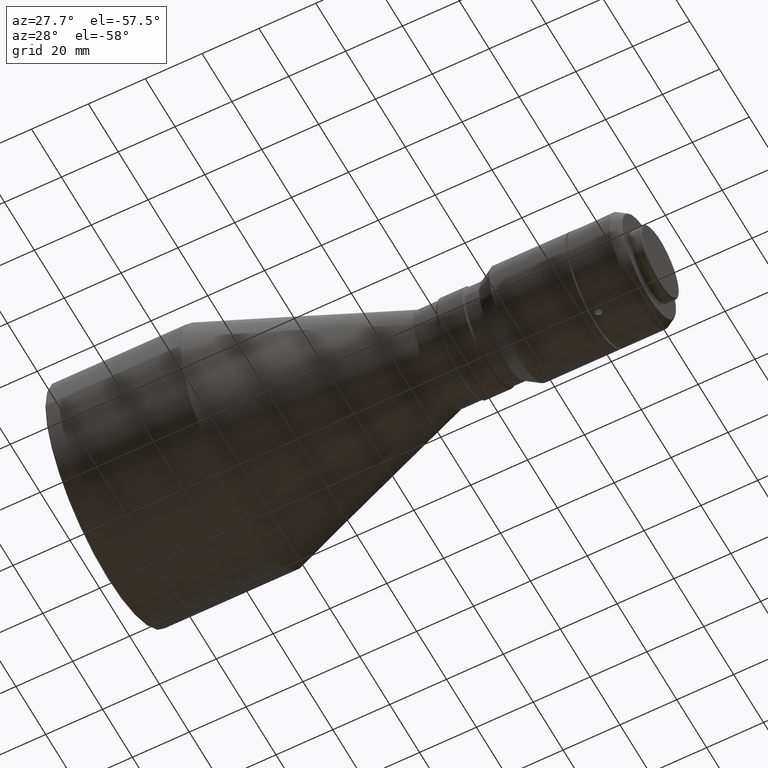
[diagram: clean part render]
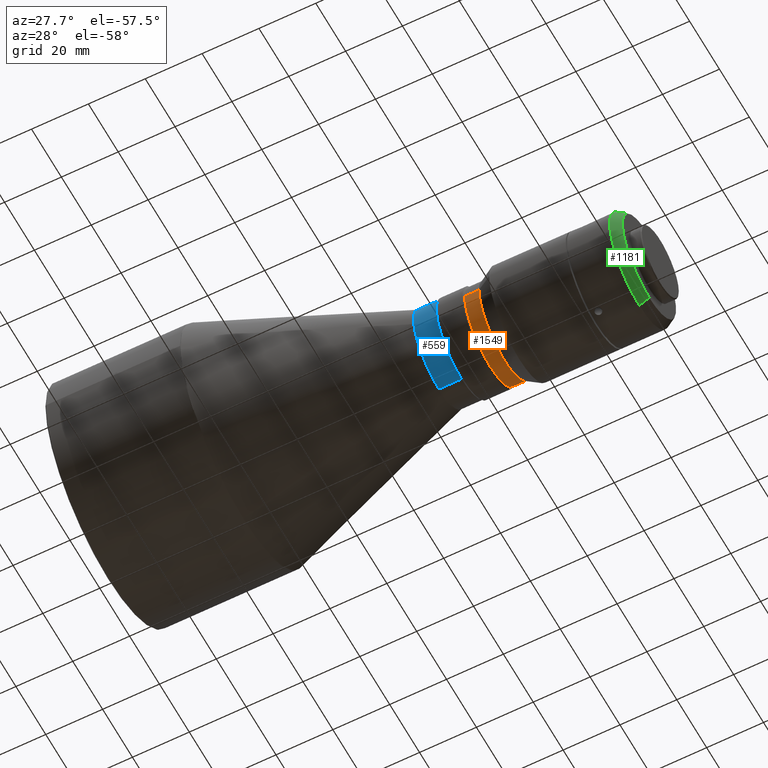
[diagram: same view with three faces highlighted in distinct colors, each labeled with its STEP entity id]
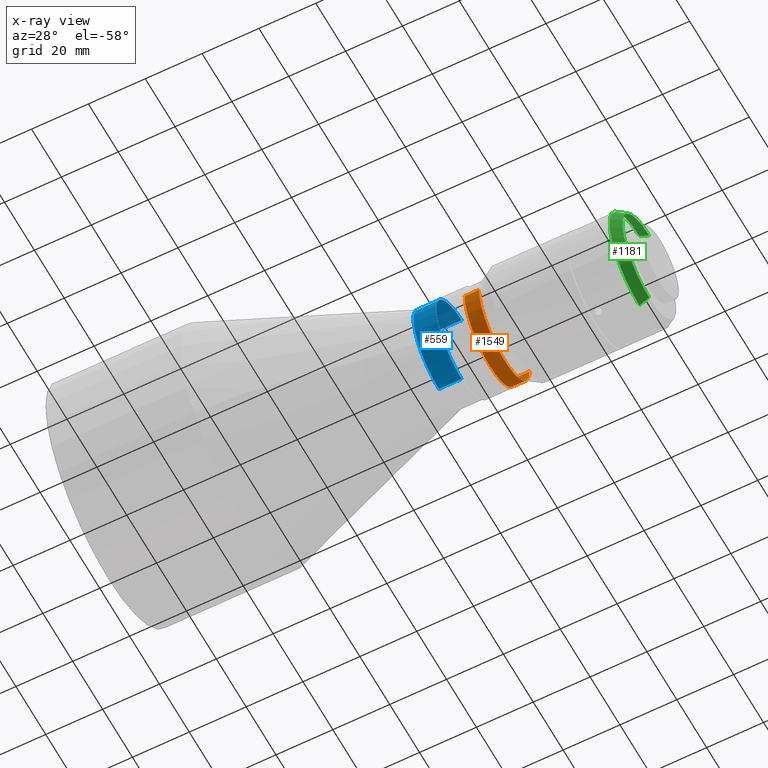
[diagram: x-ray of the same camera — body ghosted, the three highlighted faces saturated]
A machine part, auxiliary view with three faces highlighted in distinct colors.
The next image is the same camera in x-ray (body ghosted, the three faces saturated) — at least one of them is partly hidden behind the body in this view.
Their STEP definitions:

[orange] entity #1549 — the highlighted cylindrical surface (partial cylindrical patch) has radius 17 mm, axis along (-1, -0, -0).
#22 = ORIENTED_EDGE ( 'NONE', *, *, #640, .F. ) ;
#36 = VECTOR ( 'NONE', #910, 1000.000000000000000 ) ;
#87 = VERTEX_POINT ( 'NONE', #1551 ) ;
#96 = DIRECTION ( 'NONE',  ( -1.000000000000000000, -2.040851148208008200E-016, -0.0000000000000000000 ) ) ;
#106 = ORIENTED_EDGE ( 'NONE', *, *, #678, .F. ) ;
#110 = AXIS2_PLACEMENT_3D ( 'NONE', #377, #623, #165 ) ;
#150 = CARTESIAN_POINT ( 'NONE',  ( 37.29999999999999700, 2.112515728529184100E-015, -17.00000000000000000 ) ) ;
#165 = DIRECTION ( 'NONE',  ( -4.081702296416016500E-016, 0.0000000000000000000, -1.000000000000000000 ) ) ;
#267 = EDGE_CURVE ( 'NONE', #338, #87, #1286, .T. ) ;
#271 = CARTESIAN_POINT ( 'NONE',  ( 37.29999999999999700, 0.0000000000000000000, 0.0000000000000000000 ) ) ;
#275 = DIRECTION ( 'NONE',  ( -1.000000000000000000, 0.0000000000000000000, 0.0000000000000000000 ) ) ;
#293 = CARTESIAN_POINT ( 'NONE',  ( 42.29999999999999700, 0.0000000000000000000, 0.0000000000000000000 ) ) ;
#302 = ORIENTED_EDGE ( 'NONE', *, *, #267, .F. ) ;
#311 = DIRECTION ( 'NONE',  ( -1.000000000000000000, -2.040851148208008200E-016, -0.0000000000000000000 ) ) ;
#333 = AXIS2_PLACEMENT_3D ( 'NONE', #271, #275, #754 ) ;
#338 = VERTEX_POINT ( 'NONE', #941 ) ;
#377 = CARTESIAN_POINT ( 'NONE',  ( 42.30000000000000400, 0.0000000000000000000, 0.0000000000000000000 ) ) ;
#397 = CARTESIAN_POINT ( 'NONE',  ( 42.30000000000000400, -17.00000000000000000, 0.0000000000000000000 ) ) ;
#623 = DIRECTION ( 'NONE',  ( -1.000000000000000000, -0.0000000000000000000, -0.0000000000000000000 ) ) ;
#640 = EDGE_CURVE ( 'NONE', #694, #1269, #1305, .T. ) ;
#641 = DIRECTION ( 'NONE',  ( -1.000000000000000000, 0.0000000000000000000, 0.0000000000000000000 ) ) ;
#672 = EDGE_CURVE ( 'NONE', #338, #707, #962, .T. ) ;
#678 = EDGE_CURVE ( 'NONE', #87, #694, #861, .T. ) ;
#694 = VERTEX_POINT ( 'NONE', #150 ) ;
#707 = VERTEX_POINT ( 'NONE', #397 ) ;
#750 = CARTESIAN_POINT ( 'NONE',  ( 37.29999999999999700, -17.00000000000000000, 0.0000000000000000000 ) ) ;
#752 = EDGE_CURVE ( 'NONE', #707, #1269, #1317, .T. ) ;
#754 = DIRECTION ( 'NONE',  ( 0.0000000000000000000, 0.0000000000000000000, 1.000000000000000000 ) ) ;
#819 = AXIS2_PLACEMENT_3D ( 'NONE', #293, #311, #931 ) ;
#857 = ORIENTED_EDGE ( 'NONE', *, *, #672, .T. ) ;
#861 = CIRCLE ( 'NONE', #333, 17.00000000000000000 ) ;
#879 = CARTESIAN_POINT ( 'NONE',  ( 37.29999999999999700, 0.0000000000000000000, 0.0000000000000000000 ) ) ;
#883 = DIRECTION ( 'NONE',  ( 0.0000000000000000000, 0.0000000000000000000, 1.000000000000000000 ) ) ;
#910 = DIRECTION ( 'NONE',  ( -1.000000000000000000, -2.040851148208008200E-016, -0.0000000000000000000 ) ) ;
#931 = DIRECTION ( 'NONE',  ( 4.081702296416016500E-016, -1.000000000000000000, 0.0000000000000000000 ) ) ;
#941 = CARTESIAN_POINT ( 'NONE',  ( 42.30000000000000400, 17.00000000000000000, 2.081899558550500300E-015 ) ) ;
#962 = CIRCLE ( 'NONE', #110, 17.00000000000000000 ) ;
#977 = ORIENTED_EDGE ( 'NONE', *, *, #752, .T. ) ;
#1223 = CYLINDRICAL_SURFACE ( 'NONE', #819, 17.00000000000000000 ) ;
#1265 = CARTESIAN_POINT ( 'NONE',  ( 42.30000000000000400, -17.00000000000000000, 0.0000000000000000000 ) ) ;
#1269 = VERTEX_POINT ( 'NONE', #750 ) ;
#1286 = LINE ( 'NONE', #1318, #1422 ) ;
#1305 = CIRCLE ( 'NONE', #1527, 17.00000000000000000 ) ;
#1317 = LINE ( 'NONE', #1265, #36 ) ;
#1318 = CARTESIAN_POINT ( 'NONE',  ( 42.29999999999999000, 17.00000000000000000, 2.081899558550500300E-015 ) ) ;
#1422 = VECTOR ( 'NONE', #96, 1000.000000000000000 ) ;
#1445 = EDGE_LOOP ( 'NONE', ( #302, #857, #977, #22, #106 ) ) ;
#1527 = AXIS2_PLACEMENT_3D ( 'NONE', #879, #641, #883 ) ;
#1541 = FACE_OUTER_BOUND ( 'NONE', #1445, .T. ) ;
#1549 = ADVANCED_FACE ( 'NONE', ( #1541 ), #1223, .T. ) ;
#1551 = CARTESIAN_POINT ( 'NONE',  ( 37.29999999999999700, 17.00000000000000000, 2.081899558550500300E-015 ) ) ;

[blue] entity #559 — the highlighted cylindrical surface (partial cylindrical patch) has radius 17 mm, axis along (-1, 0, 0).
#11 = DIRECTION ( 'NONE',  ( -5.918468329803224600E-015, 0.0000000000000000000, -1.000000000000000000 ) ) ;
#23 = CARTESIAN_POINT ( 'NONE',  ( 27.30000000000010400, 0.0000000000000000000, 17.00000000000000000 ) ) ;
#78 = CARTESIAN_POINT ( 'NONE',  ( 27.30000000000000100, 0.0000000000000000000, 17.00000000000000000 ) ) ;
#152 = FACE_OUTER_BOUND ( 'NONE', #232, .T. ) ;
#191 = CYLINDRICAL_SURFACE ( 'NONE', #848, 17.00000000000000000 ) ;
#202 = ORIENTED_EDGE ( 'NONE', *, *, #258, .T. ) ;
#205 = DIRECTION ( 'NONE',  ( -1.000000000000000000, 0.0000000000000000000, 0.0000000000000000000 ) ) ;
#232 = EDGE_LOOP ( 'NONE', ( #627, #1348, #202, #607 ) ) ;
#258 = EDGE_CURVE ( 'NONE', #715, #734, #372, .T. ) ;
#319 = CIRCLE ( 'NONE', #1063, 17.00000000000000000 ) ;
#369 = CIRCLE ( 'NONE', #1368, 17.00000000000000000 ) ;
#372 = LINE ( 'NONE', #78, #1327 ) ;
#459 = CARTESIAN_POINT ( 'NONE',  ( 19.29644027399998800, 0.0000000000000000000, 0.0000000000000000000 ) ) ;
#471 = EDGE_CURVE ( 'NONE', #781, #715, #319, .T. ) ;
#492 = DIRECTION ( 'NONE',  ( -1.000000000000000000, -0.0000000000000000000, -0.0000000000000000000 ) ) ;
#519 = VECTOR ( 'NONE', #1578, 1000.000000000000000 ) ;
#559 = ADVANCED_FACE ( 'NONE', ( #152 ), #191, .T. ) ;
#607 = ORIENTED_EDGE ( 'NONE', *, *, #936, .F. ) ;
#627 = ORIENTED_EDGE ( 'NONE', *, *, #1022, .F. ) ;
#715 = VERTEX_POINT ( 'NONE', #23 ) ;
#734 = VERTEX_POINT ( 'NONE', #1387 ) ;
#781 = VERTEX_POINT ( 'NONE', #1291 ) ;
#848 = AXIS2_PLACEMENT_3D ( 'NONE', #1106, #1098, #1469 ) ;
#852 = CARTESIAN_POINT ( 'NONE',  ( 27.30000000000010400, 0.0000000000000000000, 0.0000000000000000000 ) ) ;
#936 = EDGE_CURVE ( 'NONE', #944, #734, #369, .T. ) ;
#944 = VERTEX_POINT ( 'NONE', #950 ) ;
#950 = CARTESIAN_POINT ( 'NONE',  ( 19.29644027380998100, -5.230137427140945200E-009, -17.00000000000634500 ) ) ;
#1022 = EDGE_CURVE ( 'NONE', #781, #944, #1262, .T. ) ;
#1063 = AXIS2_PLACEMENT_3D ( 'NONE', #852, #492, #11 ) ;
#1098 = DIRECTION ( 'NONE',  ( -1.000000000000000000, 0.0000000000000000000, 0.0000000000000000000 ) ) ;
#1106 = CARTESIAN_POINT ( 'NONE',  ( 27.30000000000000100, 0.0000000000000000000, 0.0000000000000000000 ) ) ;
#1262 = LINE ( 'NONE', #1450, #519 ) ;
#1291 = CARTESIAN_POINT ( 'NONE',  ( 27.30000000000010400, 2.081899558550500300E-015, -17.00000000000000000 ) ) ;
#1327 = VECTOR ( 'NONE', #205, 1000.000000000000000 ) ;
#1337 = DIRECTION ( 'NONE',  ( 4.081702296416016500E-016, 0.0000000000000000000, 1.000000000000000000 ) ) ;
#1348 = ORIENTED_EDGE ( 'NONE', *, *, #471, .T. ) ;
#1368 = AXIS2_PLACEMENT_3D ( 'NONE', #459, #1468, #1337 ) ;
#1387 = CARTESIAN_POINT ( 'NONE',  ( 19.29644027399997000, -7.632458416442308500E-010, 17.00000000000634500 ) ) ;
#1450 = CARTESIAN_POINT ( 'NONE',  ( 27.30000000000000100, 2.081899558550500300E-015, -17.00000000000000000 ) ) ;
#1468 = DIRECTION ( 'NONE',  ( -1.000000000000000000, 0.0000000000000000000, 0.0000000000000000000 ) ) ;
#1469 = DIRECTION ( 'NONE',  ( 0.0000000000000000000, 0.0000000000000000000, 1.000000000000000000 ) ) ;
#1578 = DIRECTION ( 'NONE',  ( -1.000000000000000000, 0.0000000000000000000, 0.0000000000000000000 ) ) ;

[green] entity #1181 — the highlighted conical surface has half-angle 30 deg.
#9 = DIRECTION ( 'NONE',  ( -0.8660254037758287100, 6.123233995919396000E-017, -0.5000000000149128500 ) ) ;
#68 = VERTEX_POINT ( 'NONE', #645 ) ;
#98 = ORIENTED_EDGE ( 'NONE', *, *, #185, .F. ) ;
#133 = CARTESIAN_POINT ( 'NONE',  ( 93.29999999999999700, 2.204364238465235800E-015, -18.00000000000000400 ) ) ;
#143 = AXIS2_PLACEMENT_3D ( 'NONE', #187, #1528, #1162 ) ;
#157 = CIRCLE ( 'NONE', #143, 18.00000000000003200 ) ;
#185 = EDGE_CURVE ( 'NONE', #68, #358, #157, .T. ) ;
#187 = CARTESIAN_POINT ( 'NONE',  ( 93.29999999999994000, 0.0000000000000000000, 0.0000000000000000000 ) ) ;
#292 = CARTESIAN_POINT ( 'NONE',  ( 89.83589838500000700, 2.449293598294706500E-015, -20.00000000000000000 ) ) ;
#322 = DIRECTION ( 'NONE',  ( 0.0000000000000000000, 0.0000000000000000000, 1.000000000000000000 ) ) ;
#330 = DIRECTION ( 'NONE',  ( 1.000000000000000000, -0.0000000000000000000, -0.0000000000000000000 ) ) ;
#358 = VERTEX_POINT ( 'NONE', #1343 ) ;
#463 = DIRECTION ( 'NONE',  ( 0.0000000000000000000, 0.0000000000000000000, 1.000000000000000000 ) ) ;
#473 = EDGE_CURVE ( 'NONE', #68, #960, #626, .T. ) ;
#493 = AXIS2_PLACEMENT_3D ( 'NONE', #1446, #330, #463 ) ;
#510 = VECTOR ( 'NONE', #9, 1000.000000000000000 ) ;
#542 = EDGE_CURVE ( 'NONE', #358, #764, #1180, .T. ) ;
#594 = AXIS2_PLACEMENT_3D ( 'NONE', #1464, #1060, #322 ) ;
#620 = ORIENTED_EDGE ( 'NONE', *, *, #890, .T. ) ;
#626 = LINE ( 'NONE', #860, #669 ) ;
#645 = CARTESIAN_POINT ( 'NONE',  ( 93.29999999999994000, 0.0000000000000000000, 18.00000000000003200 ) ) ;
#669 = VECTOR ( 'NONE', #866, 1000.000000000000000 ) ;
#764 = VERTEX_POINT ( 'NONE', #292 ) ;
#860 = CARTESIAN_POINT ( 'NONE',  ( 93.29999999999999700, 0.0000000000000000000, 18.00000000000000400 ) ) ;
#866 = DIRECTION ( 'NONE',  ( -0.8660254037758287100, 0.0000000000000000000, 0.5000000000149128500 ) ) ;
#890 = EDGE_CURVE ( 'NONE', #960, #764, #1358, .T. ) ;
#960 = VERTEX_POINT ( 'NONE', #1323 ) ;
#1060 = DIRECTION ( 'NONE',  ( -1.000000000000000000, 0.0000000000000000000, 0.0000000000000000000 ) ) ;
#1088 = CONICAL_SURFACE ( 'NONE', #594, 18.00000000000000400, 0.5235987756155187100 ) ;
#1131 = FACE_OUTER_BOUND ( 'NONE', #1424, .T. ) ;
#1152 = ORIENTED_EDGE ( 'NONE', *, *, #542, .F. ) ;
#1162 = DIRECTION ( 'NONE',  ( 0.0000000000000000000, 0.0000000000000000000, 1.000000000000000000 ) ) ;
#1180 = LINE ( 'NONE', #133, #510 ) ;
#1181 = ADVANCED_FACE ( 'NONE', ( #1131 ), #1088, .T. ) ;
#1323 = CARTESIAN_POINT ( 'NONE',  ( 89.83589838500000700, 0.0000000000000000000, 20.00000000000000000 ) ) ;
#1343 = CARTESIAN_POINT ( 'NONE',  ( 93.29999999999994000, 2.326828918379972900E-015, -18.00000000000003200 ) ) ;
#1358 = CIRCLE ( 'NONE', #493, 20.00000000000000000 ) ;
#1364 = ORIENTED_EDGE ( 'NONE', *, *, #473, .T. ) ;
#1424 = EDGE_LOOP ( 'NONE', ( #1152, #98, #1364, #620 ) ) ;
#1446 = CARTESIAN_POINT ( 'NONE',  ( 89.83589838500000700, 0.0000000000000000000, 0.0000000000000000000 ) ) ;
#1464 = CARTESIAN_POINT ( 'NONE',  ( 93.29999999999999700, 0.0000000000000000000, 0.0000000000000000000 ) ) ;
#1528 = DIRECTION ( 'NONE',  ( 1.000000000000000000, -0.0000000000000000000, -0.0000000000000000000 ) ) ;